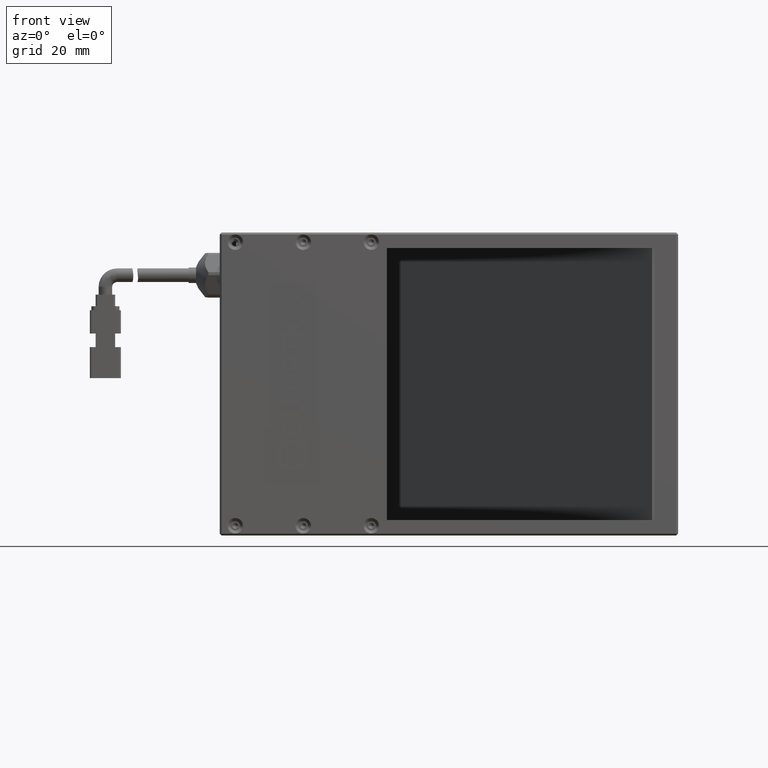
[diagram: clean part render]
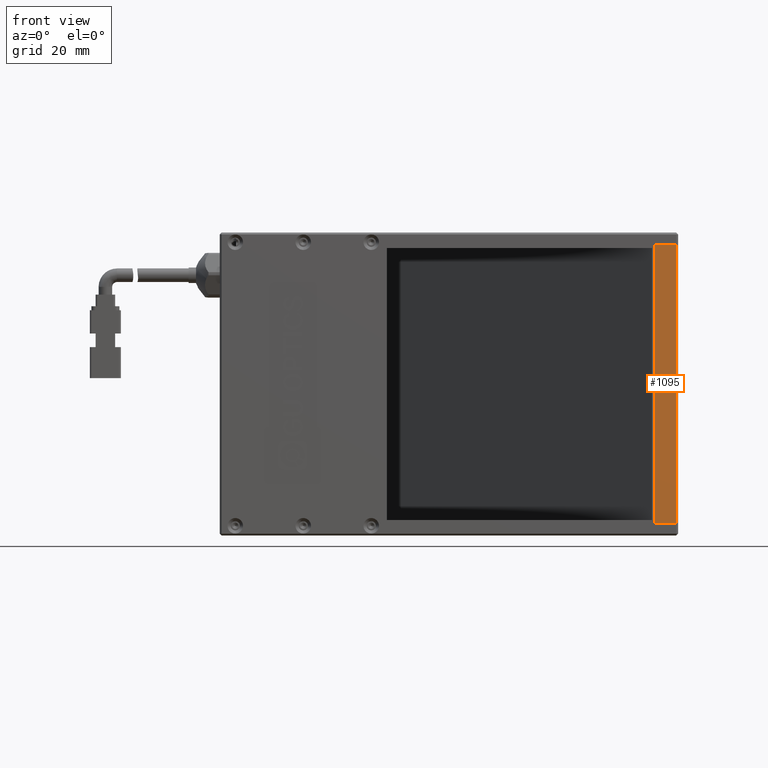
[diagram: same view with one face highlighted and labeled with its STEP entity id]
A machine part, front view. The second image highlights one B-rep face of the part: STEP entity #1095.
In plain terms, the highlighted planar face has unit normal (-0, 1, 0).
Its self-contained STEP definition (entity closure, byte-faithful):
#1095 = ADVANCED_FACE ( 'NONE', ( #53613 ), #40426, .F. ) ;
#3455 = CARTESIAN_POINT ( 'NONE',  ( 44.53944640265395100, -17.41808924827789400, 75.00000000000955000 ) ) ;
#5082 = CARTESIAN_POINT ( 'NONE',  ( 45.03944640265395100, -17.41808924827789400, 75.00000000000955000 ) ) ;
#6077 = EDGE_CURVE ( 'NONE', #37176, #63254, #12785, .T. ) ;
#10716 = AXIS2_PLACEMENT_3D ( 'NONE', #38045, #35615, #35387 ) ;
#10973 = ORIENTED_EDGE ( 'NONE', *, *, #60469, .F. ) ;
#12785 = LINE ( 'NONE', #5082, #38521 ) ;
#14736 = DIRECTION ( 'NONE',  ( -1.000000000000000000, -0.0000000000000000000, -0.0000000000000000000 ) ) ;
#17341 = LINE ( 'NONE', #53145, #33644 ) ;
#17580 = ORIENTED_EDGE ( 'NONE', *, *, #23688, .F. ) ;
#20329 = ORIENTED_EDGE ( 'NONE', *, *, #6077, .F. ) ;
#21754 = ORIENTED_EDGE ( 'NONE', *, *, #59962, .F. ) ;
#23688 = EDGE_CURVE ( 'NONE', #48241, #49570, #17341, .T. ) ;
#23727 = VECTOR ( 'NONE', #59496, 1000.000000000000000 ) ;
#26167 = LINE ( 'NONE', #3455, #39041 ) ;
#29390 = CARTESIAN_POINT ( 'NONE',  ( 39.03944640265395100, -17.41808924827789400, 75.00000000000955000 ) ) ;
#31103 = DIRECTION ( 'NONE',  ( 0.0000000000000000000, 0.0000000000000000000, -1.000000000000000000 ) ) ;
#33644 = VECTOR ( 'NONE', #14736, 1000.000000000000000 ) ;
#35387 = DIRECTION ( 'NONE',  ( 1.000000000000000000, 0.0000000000000000000, 0.0000000000000000000 ) ) ;
#35615 = DIRECTION ( 'NONE',  ( -0.0000000000000000000, 1.000000000000000000, 0.0000000000000000000 ) ) ;
#37176 = VERTEX_POINT ( 'NONE', #29390 ) ;
#37395 = CARTESIAN_POINT ( 'NONE',  ( 39.03944640265395100, -17.41808924827789400, 75.00000000000955000 ) ) ;
#37982 = DIRECTION ( 'NONE',  ( 1.000000000000000000, 0.0000000000000000000, 0.0000000000000000000 ) ) ;
#38045 = CARTESIAN_POINT ( 'NONE',  ( 45.03944640265395100, -17.41808924827789400, 75.00000000000955000 ) ) ;
#38331 = LINE ( 'NONE', #37395, #23727 ) ;
#38521 = VECTOR ( 'NONE', #37982, 1000.000000000000000 ) ;
#39041 = VECTOR ( 'NONE', #31103, 1000.000000000000000 ) ;
#40426 = PLANE ( 'NONE',  #10716 ) ;
#48241 = VERTEX_POINT ( 'NONE', #49951 ) ;
#49570 = VERTEX_POINT ( 'NONE', #67573 ) ;
#49951 = CARTESIAN_POINT ( 'NONE',  ( 44.53944640265395100, -17.41808924827789400, 3.000000000009508800 ) ) ;
#51201 = CARTESIAN_POINT ( 'NONE',  ( 44.53944640265395100, -17.41808924827789400, 75.00000000000955000 ) ) ;
#53145 = CARTESIAN_POINT ( 'NONE',  ( 45.03944640265395100, -17.41808924827789400, 3.000000000009536800 ) ) ;
#53613 = FACE_OUTER_BOUND ( 'NONE', #57318, .T. ) ;
#57318 = EDGE_LOOP ( 'NONE', ( #10973, #20329, #21754, #17580 ) ) ;
#59496 = DIRECTION ( 'NONE',  ( 0.0000000000000000000, 0.0000000000000000000, 1.000000000000000000 ) ) ;
#59962 = EDGE_CURVE ( 'NONE', #49570, #37176, #38331, .T. ) ;
#60469 = EDGE_CURVE ( 'NONE', #63254, #48241, #26167, .T. ) ;
#63254 = VERTEX_POINT ( 'NONE', #51201 ) ;
#67573 = CARTESIAN_POINT ( 'NONE',  ( 39.03944640265395100, -17.41808924827789400, 3.000000000009536800 ) ) ;